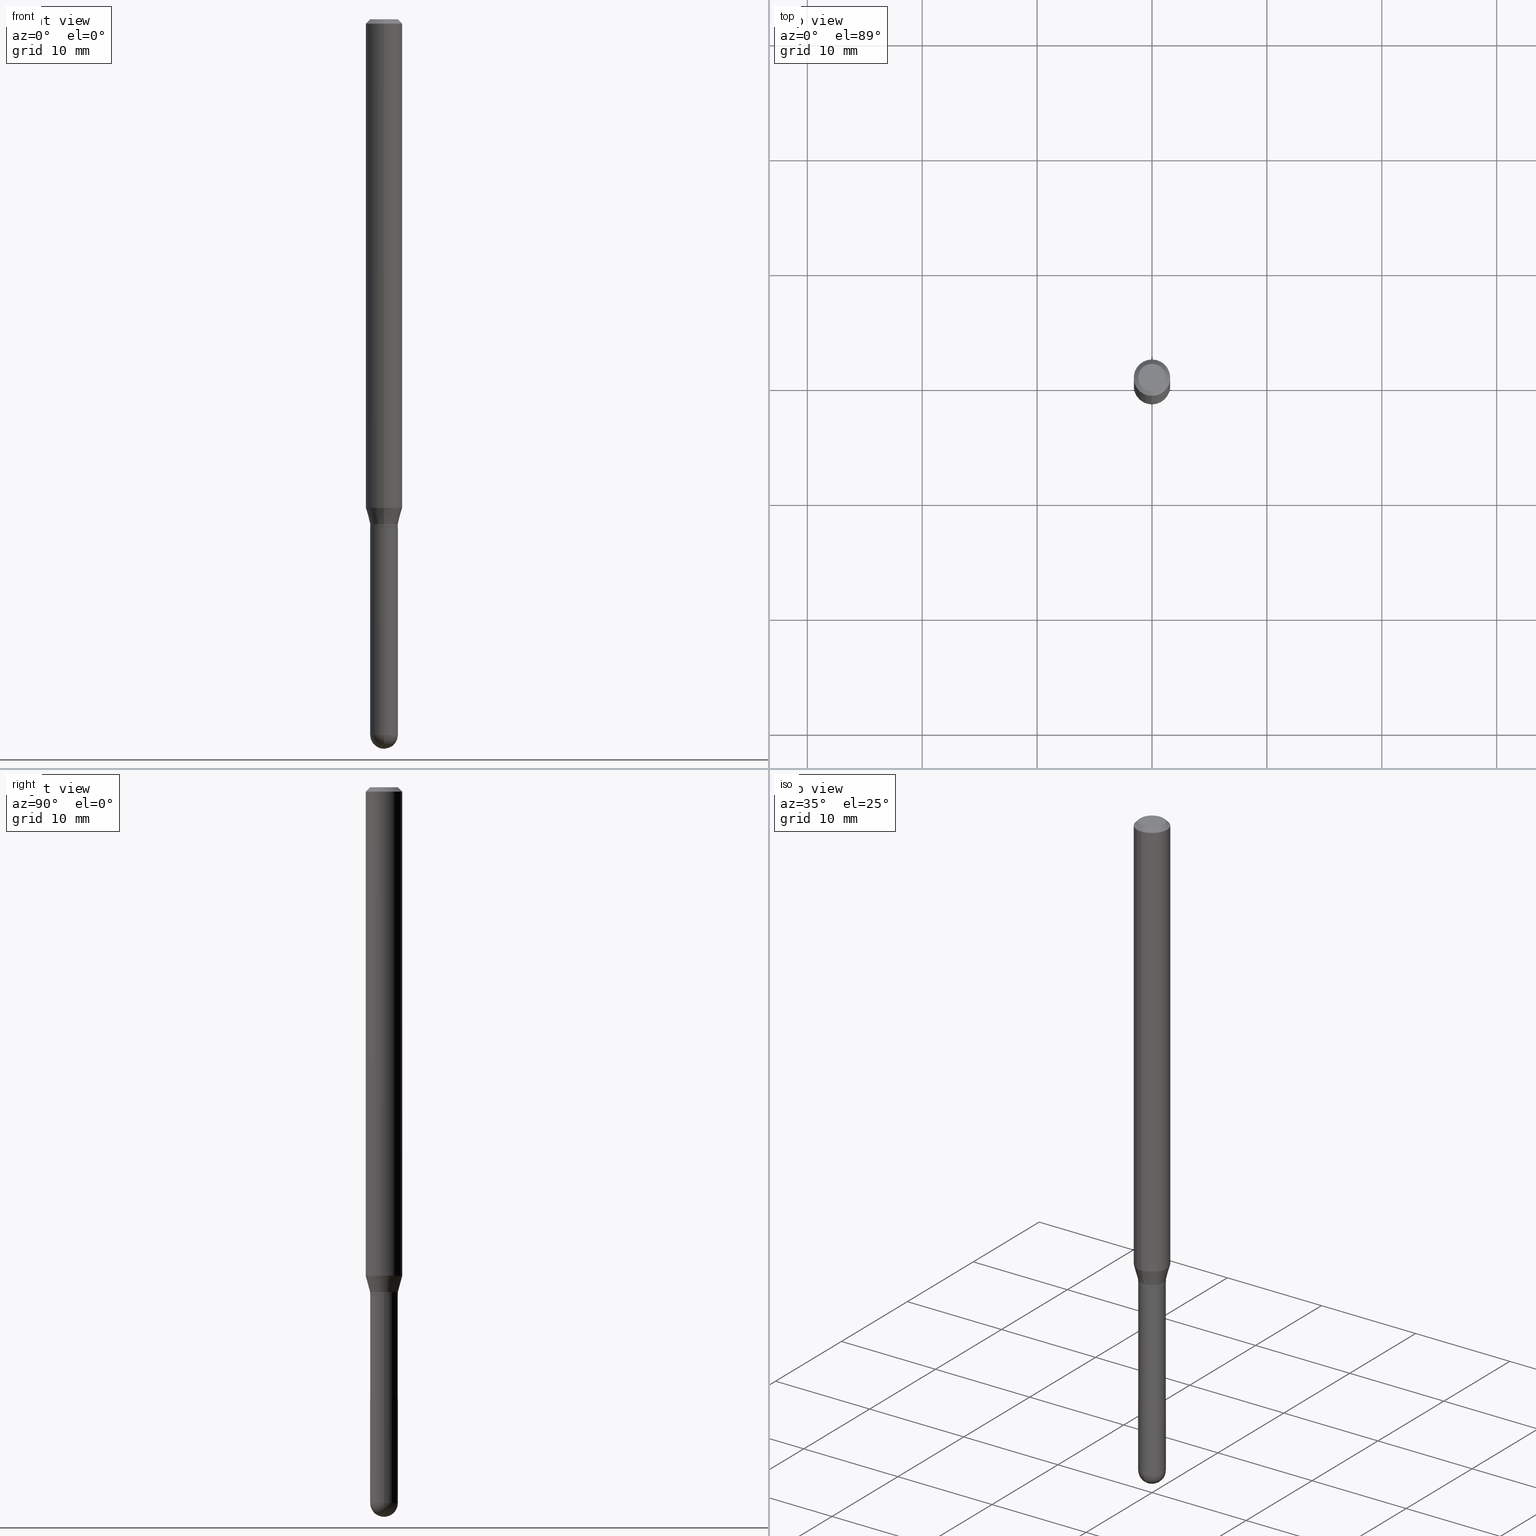
[diagram: canonical four-view strip — front | top / right | iso, engineering-drawing reading convention]
A machine part, canonical four-view strip (front | top / right | iso — engineering-drawing reading convention). The complete STEP part file that produces these views, byte-faithful:
ISO-10303-21;
HEADER;
FILE_DESCRIPTION (( 'STEP AP203' ),
    '1' );
FILE_NAME ('01001.STEP',
    '2024-03-07T19:38:45',
    ( '' ),
    ( '' ),
    'SwSTEP 2.0',
    'SolidWorks 2023',
    '' );
FILE_SCHEMA (( 'CONFIG_CONTROL_DESIGN' ));
ENDSEC;

DATA;
#1 = DIRECTION ( 'NONE',  ( -2.445469653378123056E-29, 3.491480125614569646E-15, 1.000000000000000000 ) ) ;
#2 = EDGE_LOOP ( 'NONE', ( #495, #195, #92, #414 ) ) ;
#3 = EDGE_CURVE ( 'NONE', #34, #158, #322, .T. ) ;
#4 = AXIS2_PLACEMENT_3D ( 'NONE', #206, #170, #361 ) ;
#5 = DIRECTION ( 'NONE',  ( -2.445469653378123056E-29, 3.491480125614569646E-15, 1.000000000000000000 ) ) ;
#6 = AXIS2_PLACEMENT_3D ( 'NONE', #153, #1, #386 ) ;
#7 = ORIENTED_EDGE ( 'NONE', *, *, #175, .T. ) ;
#8 = AXIS2_PLACEMENT_3D ( 'NONE', #26, #110, #420 ) ;
#9 = ADVANCED_FACE ( 'NONE', ( #166 ), #319, .F. ) ;
#10 = CARTESIAN_POINT ( 'NONE',  ( 3.668204480067187193E-31, -5.237220188421857822E-17, -0.01500000000000000812 ) ) ;
#11 = EDGE_LOOP ( 'NONE', ( #88, #292, #240, #467 ) ) ;
#12 = FACE_OUTER_BOUND ( 'NONE', #255, .T. ) ;
#13 = DIRECTION ( 'NONE',  ( -6.982962677686265922E-15, -1.000000000000000000, 3.491480125614569646E-15 ) ) ;
#14 = PERSON_AND_ORGANIZATION ( #139, #115 ) ;
#15 = CIRCLE ( 'NONE', #160, 0.04749999999999964667 ) ;
#16 = CARTESIAN_POINT ( 'NONE',  ( 3.375077994860883172E-16, 0.04749999999999367922, -1.739500000000000712 ) ) ;
#17 = COORDINATED_UNIVERSAL_TIME_OFFSET ( 5, 0, .BEHIND. ) ;
#18 = ORIENTED_EDGE ( 'NONE', *, *, #246, .T. ) ;
#19 = CARTESIAN_POINT ( 'NONE',  ( 0.000000000000000000, 0.000000000000000000, 0.000000000000000000 ) ) ;
#20 = EDGE_CURVE ( 'NONE', #158, #197, #403, .T. ) ;
#21 = CARTESIAN_POINT ( 'NONE',  ( -3.375077994859875895E-16, -0.04750000000000855621, -2.452499999999999680 ) ) ;
#22 = COORDINATED_UNIVERSAL_TIME_OFFSET ( 5, 0, .BEHIND. ) ;
#23 = CARTESIAN_POINT ( 'NONE',  ( -0.04750000000000000749, 3.375077994860476415E-16, -2.336494167871080260E-30 ) ) ;
#24 = EDGE_CURVE ( 'NONE', #131, #220, #326, .T. ) ;
#25 = DIRECTION ( 'NONE',  ( -2.445468806185136877E-29, 3.491481338843145188E-15, 1.000000000000000000 ) ) ;
#26 = CARTESIAN_POINT ( 'NONE',  ( 4.255117196877934184E-29, -6.075175418569351326E-15, -1.739999999999999991 ) ) ;
#27 = ORIENTED_EDGE ( 'NONE', *, *, #312, .F. ) ;
#28 = DIRECTION ( 'NONE',  ( -4.937700262164674260E-15, -0.7071067811865632269, 0.7071067811865319186 ) ) ;
#29 = EDGE_CURVE ( 'NONE', #461, #332, #443, .T. ) ;
#30 = DIRECTION ( 'NONE',  ( 1.000000000000000000, -6.982962677686265922E-15, 4.883557194083112340E-29 ) ) ;
#31 = ORIENTED_EDGE ( 'NONE', *, *, #435, .T. ) ;
#32 = DIRECTION ( 'NONE',  ( -6.982962677686265922E-15, -1.000000000000000000, 4.370956789862821150E-15 ) ) ;
#33 = CARTESIAN_POINT ( 'NONE',  ( 6.111640995526040935E-29, -8.731611883255839934E-15, -2.500000000000000000 ) ) ;
#34 = VERTEX_POINT ( 'NONE', #16 ) ;
#35 = FACE_OUTER_BOUND ( 'NONE', #2, .T. ) ;
#36 = EDGE_CURVE ( 'NONE', #388, #39, #363, .T. ) ;
#37 = ORIENTED_EDGE ( 'NONE', *, *, #375, .F. ) ;
#38 = DIRECTION ( 'NONE',  ( -2.445468806185136597E-29, 3.491481338843145583E-15, 1.000000000000000000 ) ) ;
#39 = VERTEX_POINT ( 'NONE', #369 ) ;
#40 = DIRECTION ( 'NONE',  ( -2.445469653378123056E-29, 3.491480125614569646E-15, 1.000000000000000000 ) ) ;
#41 = VERTEX_POINT ( 'NONE', #410 ) ;
#42 = AXIS2_PLACEMENT_3D ( 'NONE', #302, #377, #496 ) ;
#43 = ADVANCED_FACE ( 'NONE', ( #96 ), #46, .T. ) ;
#44 = EDGE_LOOP ( 'NONE', ( #279, #512 ) ) ;
#45 = DATE_AND_TIME ( #281, #471 ) ;
#46 = CYLINDRICAL_SURFACE ( 'NONE', #161, 0.04749999999999964667 ) ;
#47 = MECHANICAL_CONTEXT ( 'NONE', #70, 'mechanical' ) ;
#48 = DIRECTION ( 'NONE',  ( -2.445468806185136597E-29, 3.491481338843145583E-15, 1.000000000000000000 ) ) ;
#49 = SECURITY_CLASSIFICATION ( '', '', #257 ) ;
#50 = VERTEX_POINT ( 'NONE', #21 ) ;
#51 = AXIS2_PLACEMENT_3D ( 'NONE', #219, #149, #419 ) ;
#52 = CARTESIAN_POINT ( 'NONE',  ( 2.166778360945367895E-46, -3.093583096973605870E-32, -8.860377220188453536E-18 ) ) ;
#53 = EDGE_CURVE ( 'NONE', #233, #258, #380, .T. ) ;
#54 = APPROVAL_STATUS ( 'not_yet_approved' ) ;
#55 = EDGE_LOOP ( 'NONE', ( #316, #412 ) ) ;
#56 = UNCERTAINTY_MEASURE_WITH_UNIT (LENGTH_MEASURE( 1.000000000000000082E-05 ), #317, 'distance_accuracy_value', 'NONE');
#57 = CARTESIAN_POINT ( 'NONE',  ( 4.255115722762138620E-29, -6.075177529587074600E-15, -1.740000000000000213 ) ) ;
#58 = VERTEX_POINT ( 'NONE', #138 ) ;
#59 = DIRECTION ( 'NONE',  ( -6.982962677686266711E-15, -1.000000000000000000, 3.491480125614570041E-15 ) ) ;
#60 = PERSON_AND_ORGANIZATION ( #139, #115 ) ;
#61 = AXIS2_PLACEMENT_3D ( 'NONE', #429, #40, #470 ) ;
#62 = ADVANCED_FACE ( 'NONE', ( #12 ), #336, .T. ) ;
#63 = FACE_OUTER_BOUND ( 'NONE', #289, .T. ) ;
#64 = CALENDAR_DATE ( 2024, 7, 3 ) ;
#65 = DIRECTION ( 'NONE',  ( 1.000000000000000000, -6.982962677686266711E-15, 4.876176775795934672E-29 ) ) ;
#66 = CYLINDRICAL_SURFACE ( 'NONE', #268, 0.04749999999999964667 ) ;
#67 = VECTOR ( 'NONE', #303, 39.37007874015748143 ) ;
#68 = AXIS2_PLACEMENT_3D ( 'NONE', #236, #5, #32 ) ;
#69 = CARTESIAN_POINT ( 'NONE',  ( -3.281992458512119547E-16, -0.04700000000000607164, -1.739999999999999769 ) ) ;
#70 = APPLICATION_CONTEXT ( 'configuration controlled 3d designs of mechanical parts and assemblies' ) ;
#71 = CARTESIAN_POINT ( 'NONE',  ( 4.253894462051246233E-29, -6.073429678506545715E-15, -1.739500000000000490 ) ) ;
#72 = CARTESIAN_POINT ( 'NONE',  ( 4.364351673553919652E-16, 0.06249999999999995143, -0.01500000000000022669 ) ) ;
#73 = ORIENTED_EDGE ( 'NONE', *, *, #150, .F. ) ;
#74 = VECTOR ( 'NONE', #193, 39.37007874015748143 ) ;
#75 = EDGE_LOOP ( 'NONE', ( #478, #398, #474, #401 ) ) ;
#76 = CC_DESIGN_PERSON_AND_ORGANIZATION_ASSIGNMENT ( #84, #125, ( #341 ) ) ;
#77 = EDGE_LOOP ( 'NONE', ( #469, #510, #7, #442 ) ) ;
#78 = DIRECTION ( 'NONE',  ( 2.445469653378123056E-29, -3.491480125614569646E-15, -1.000000000000000000 ) ) ;
#79 = ORIENTED_EDGE ( 'NONE', *, *, #53, .T. ) ;
#80 = EDGE_CURVE ( 'NONE', #332, #131, #344, .T. ) ;
#81 = LENGTH_MEASURE_WITH_UNIT ( LENGTH_MEASURE( 0.02539999999999999897 ), #406 );
#82 = ORIENTED_EDGE ( 'NONE', *, *, #20, .F. ) ;
#83 = DIRECTION ( 'NONE',  ( 1.000000000000000000, -6.982962677686280910E-15, 0.000000000000000000 ) ) ;
#84 = PERSON_AND_ORGANIZATION ( #139, #115 ) ;
#85 = ORIENTED_EDGE ( 'NONE', *, *, #184, .F. ) ;
#86 = LINE ( 'NONE', #321, #109 ) ;
#87 = APPROVAL_STATUS ( 'not_yet_approved' ) ;
#88 = ORIENTED_EDGE ( 'NONE', *, *, #189, .F. ) ;
#89 = EDGE_CURVE ( 'NONE', #118, #220, #198, .T. ) ;
#90 = CONICAL_SURFACE ( 'NONE', #378, 0.06250000000000000000, 0.7853981633974483900 ) ;
#91 = CARTESIAN_POINT ( 'NONE',  ( -4.364351673553505007E-16, -0.06250000000000581479, -1.674019237886465561 ) ) ;
#92 = ORIENTED_EDGE ( 'NONE', *, *, #24, .T. ) ;
#93 = CLOSED_SHELL ( 'NONE', ( #43, #62, #355, #508, #404, #464, #415, #239, #284, #119, #230, #222 ) ) ;
#94 = CIRCLE ( 'NONE', #364, 0.04750000000000000749 ) ;
#95 = DIRECTION ( 'NONE',  ( -2.445469653378123056E-29, 3.491480125614569646E-15, 1.000000000000000000 ) ) ;
#96 = FACE_OUTER_BOUND ( 'NONE', #261, .T. ) ;
#97 = DIRECTION ( 'NONE',  ( -1.000000000000000000, 6.982962677686265922E-15, -4.876176775795935793E-29 ) ) ;
#98 = ORIENTED_EDGE ( 'NONE', *, *, #371, .F. ) ;
#99 = EDGE_CURVE ( 'NONE', #461, #197, #446, .T. ) ;
#100 = CARTESIAN_POINT ( 'NONE',  ( 4.440892098500625669E-16, 0.06250000000000000000, -2.182175078509106029E-16 ) ) ;
#101 = CC_DESIGN_APPROVAL ( #306, ( #341 ) ) ;
#102 = AXIS2_PLACEMENT_3D ( 'NONE', #311, #114, #430 ) ;
#103 = AXIS2_PLACEMENT_3D ( 'NONE', #271, #426, #462 ) ;
#104 = DIRECTION ( 'NONE',  ( -2.445468806185136597E-29, 3.491481338843145583E-15, 1.000000000000000000 ) ) ;
#105 = DIRECTION ( 'NONE',  ( -6.982962677686265133E-15, -1.000000000000000000, 3.491480125614569646E-15 ) ) ;
#106 = LINE ( 'NONE', #23, #171 ) ;
#107 = AXIS2_PLACEMENT_3D ( 'NONE', #224, #151, #181 ) ;
#108 = CC_DESIGN_APPROVAL ( #409, ( #49 ) ) ;
#109 = VECTOR ( 'NONE', #448, 39.37007874015748143 ) ;
#110 = DIRECTION ( 'NONE',  ( -2.445469653378123056E-29, 3.491480125614569646E-15, 1.000000000000000000 ) ) ;
#111 = CARTESIAN_POINT ( 'NONE',  ( 4.230662500344153301E-29, -6.040260617313205180E-15, -1.730000000000000204 ) ) ;
#112 = EDGE_LOOP ( 'NONE', ( #272, #452 ) ) ;
#113 = CARTESIAN_POINT ( 'NONE',  ( 0.04750000000000000749, -3.316907271900977082E-16, 2.316183968503069432E-30 ) ) ;
#114 = DIRECTION ( 'NONE',  ( -2.445469653378123056E-29, 3.491480125614569646E-15, 1.000000000000000000 ) ) ;
#115 = ORGANIZATION ( 'UNSPECIFIED', 'UNSPECIFIED', '' ) ;
#116 = DIRECTION ( 'NONE',  ( 1.000000000000000000, -6.982962677686280910E-15, 0.000000000000000000 ) ) ;
#117 = CIRCLE ( 'NONE', #432, 0.06250000000000000000 ) ;
#118 = VERTEX_POINT ( 'NONE', #296 ) ;
#119 = ADVANCED_FACE ( 'NONE', ( #213 ), #416, .F. ) ;
#120 = ORIENTED_EDGE ( 'NONE', *, *, #366, .T. ) ;
#121 = COORDINATED_UNIVERSAL_TIME_OFFSET ( 5, 0, .BEHIND. ) ;
#122 = DIRECTION ( 'NONE',  ( -2.445469653378123056E-29, 3.491480125614569646E-15, 1.000000000000000000 ) ) ;
#123 = ORIENTED_EDGE ( 'NONE', *, *, #137, .T. ) ;
#124 = CARTESIAN_POINT ( 'NONE',  ( -3.316907271900519050E-16, -0.04750000000000561412, -1.739500000000000046 ) ) ;
#125 = PERSON_AND_ORGANIZATION_ROLE ( 'creator' ) ;
#126 = DIRECTION ( 'NONE',  ( -2.445469653378123056E-29, 3.491480125614569646E-15, 1.000000000000000000 ) ) ;
#127 = DATE_AND_TIME ( #484, #286 ) ;
#128 = ORIENTED_EDGE ( 'NONE', *, *, #184, .T. ) ;
#129 = EDGE_CURVE ( 'NONE', #58, #440, #227, .T. ) ;
#130 = DIRECTION ( 'NONE',  ( 1.000000000000000000, -6.982962677686261977E-15, 0.000000000000000000 ) ) ;
#131 = VERTEX_POINT ( 'NONE', #91 ) ;
#132 = DIRECTION ( 'NONE',  ( -2.445469653378123056E-29, 3.491480125614569646E-15, 1.000000000000000000 ) ) ;
#133 = CIRCLE ( 'NONE', #423, 0.04750000000000000749 ) ;
#134 = APPROVAL_DATE_TIME ( #501, #409 ) ;
#135 = ORIENTED_EDGE ( 'NONE', *, *, #371, .T. ) ;
#136 = DIRECTION ( 'NONE',  ( -6.982962677686265922E-15, -1.000000000000000000, 3.491480125614569646E-15 ) ) ;
#137 = EDGE_CURVE ( 'NONE', #39, #50, #94, .T. ) ;
#138 = CARTESIAN_POINT ( 'NONE',  ( -0.04749999999999999362, -6.981509957063897703E-15, -1.740000000000000213 ) ) ;
#139 = PERSON ( 'UNSPECIFIED', 'UNSPECIFIED', 'UNSPECIFIED', ('UNSPECIFIED'), ('UNSPECIFIED'), ('UNSPECIFIED') ) ;
#140 = FACE_OUTER_BOUND ( 'NONE', #55, .T. ) ;
#141 = CC_DESIGN_PERSON_AND_ORGANIZATION_ASSIGNMENT ( #494, #411, ( #49 ) ) ;
#142 = DATE_TIME_ROLE ( 'classification_date' ) ;
#143 = DIMENSIONAL_EXPONENTS ( 1.000000000000000000, 0.000000000000000000, 0.000000000000000000, 0.000000000000000000, 0.000000000000000000, 0.000000000000000000, 0.000000000000000000 ) ;
#144 = LINE ( 'NONE', #69, #399 ) ;
#145 = CC_DESIGN_APPROVAL ( #505, ( #455 ) ) ;
#146 = AXIS2_PLACEMENT_3D ( 'NONE', #351, #365, #97 ) ;
#147 = CIRCLE ( 'NONE', #162, 0.04749999999999999362 ) ;
#148 = DIRECTION ( 'NONE',  ( -6.982962677686265133E-15, -1.000000000000000000, 5.751258934030070759E-15 ) ) ;
#149 = DIRECTION ( 'NONE',  ( -2.445469653378123056E-29, 3.491480125614569646E-15, 1.000000000000000000 ) ) ;
#150 = EDGE_CURVE ( 'NONE', #214, #41, #200, .T. ) ;
#151 = DIRECTION ( 'NONE',  ( 2.445469653378122775E-29, -3.491480125614569646E-15, -1.000000000000000000 ) ) ;
#152 = DIRECTION ( 'NONE',  ( -1.000000000000000000, 7.105427357601001070E-15, -4.926315508542082329E-29 ) ) ;
#153 = CARTESIAN_POINT ( 'NONE',  ( 4.230662500344153301E-29, -6.040260617313205180E-15, -1.730000000000000204 ) ) ;
#154 = EDGE_CURVE ( 'NONE', #34, #461, #86, .T. ) ;
#155 = ORIENTED_EDGE ( 'NONE', *, *, #435, .F. ) ;
#156 = DIRECTION ( 'NONE',  ( -2.445469653378123056E-29, 3.491480125614569646E-15, 1.000000000000000000 ) ) ;
#157 = EDGE_LOOP ( 'NONE', ( #299, #433, #163, #325 ) ) ;
#158 = VERTEX_POINT ( 'NONE', #124 ) ;
#159 = ADVANCED_BREP_SHAPE_REPRESENTATION ( '01001', ( #499, #320, #362 ), #234 ) ;
#160 = AXIS2_PLACEMENT_3D ( 'NONE', #71, #156, #466 ) ;
#161 = AXIS2_PLACEMENT_3D ( 'NONE', #19, #487, #413 ) ;
#162 = AXIS2_PLACEMENT_3D ( 'NONE', #387, #194, #397 ) ;
#163 = ORIENTED_EDGE ( 'NONE', *, *, #137, .F. ) ;
#164 = APPLICATION_PROTOCOL_DEFINITION ( 'international standard', 'config_control_design', 1994, #249 ) ;
#165 = CARTESIAN_POINT ( 'NONE',  ( 5.997512247169047773E-29, -8.562857983512815004E-15, -2.452500000000000124 ) ) ;
#166 = FACE_OUTER_BOUND ( 'NONE', #112, .T. ) ;
#167 = CARTESIAN_POINT ( 'NONE',  ( 0.000000000000000000, 0.000000000000000000, 0.000000000000000000 ) ) ;
#168 = DIRECTION ( 'NONE',  ( -2.445468806185136597E-29, 3.491481338843145583E-15, 1.000000000000000000 ) ) ;
#169 = VECTOR ( 'NONE', #216, 39.37007874015748143 ) ;
#170 = DIRECTION ( 'NONE',  ( -2.445469653378123056E-29, 3.491480125614569646E-15, 1.000000000000000000 ) ) ;
#171 = VECTOR ( 'NONE', #25, 39.37007874015748143 ) ;
#172 = APPROVAL_STATUS ( 'not_yet_approved' ) ;
#173 = CARTESIAN_POINT ( 'NONE',  ( 4.255117196877934184E-29, -6.075175418569351326E-15, -1.739999999999999991 ) ) ;
#174 = CARTESIAN_POINT ( 'NONE',  ( 4.255117196877934184E-29, -6.075175418569351326E-15, -1.739999999999999991 ) ) ;
#175 = EDGE_CURVE ( 'NONE', #197, #131, #287, .T. ) ;
#176 = AXIS2_PLACEMENT_3D ( 'NONE', #196, #122, #282 ) ;
#177 = DIRECTION ( 'NONE',  ( -6.982962677686265133E-15, -1.000000000000000000, 5.751258934030070759E-15 ) ) ;
#178 = PERSON_AND_ORGANIZATION_ROLE ( 'creator' ) ;
#179 = ORIENTED_EDGE ( 'NONE', *, *, #192, .F. ) ;
#180 = AXIS2_PLACEMENT_3D ( 'NONE', #182, #104, #65 ) ;
#181 = DIRECTION ( 'NONE',  ( 6.982962677686265922E-15, 1.000000000000000000, -3.491480125614569646E-15 ) ) ;
#182 = CARTESIAN_POINT ( 'NONE',  ( 0.000000000000000000, 0.000000000000000000, 0.000000000000000000 ) ) ;
#183 = CARTESIAN_POINT ( 'NONE',  ( -3.773273898774340269E-16, -0.04749999999999999362, 1.569849287465035850E-16 ) ) ;
#184 = EDGE_CURVE ( 'NONE', #214, #220, #438, .T. ) ;
#185 = APPROVAL_PERSON_ORGANIZATION ( #373, #409, #444 ) ;
#186 = AXIS2_PLACEMENT_3D ( 'NONE', #480, #450, #177 ) ;
#187 = DIRECTION ( 'NONE',  ( 6.982962677686265922E-15, 1.000000000000000000, -3.483106191921935554E-15 ) ) ;
#188 = FACE_OUTER_BOUND ( 'NONE', #203, .T. ) ;
#189 = EDGE_CURVE ( 'NONE', #258, #34, #500, .T. ) ;
#190 = CARTESIAN_POINT ( 'NONE',  ( 3.907985046680954347E-16, 0.04749999999999360289, -1.730000000000000426 ) ) ;
#191 = CONICAL_SURFACE ( 'NONE', #6, 0.04749999999999964667, 0.2617993877991505181 ) ;
#192 = EDGE_CURVE ( 'NONE', #370, #50, #228, .T. ) ;
#193 = DIRECTION ( 'NONE',  ( 4.937700262164548042E-15, 0.7071067811865451302, -0.7071067811865499042 ) ) ;
#194 = DIRECTION ( 'NONE',  ( -2.445469653378123056E-29, 3.491480125614569646E-15, 1.000000000000000000 ) ) ;
#195 = ORIENTED_EDGE ( 'NONE', *, *, #80, .T. ) ;
#196 = CARTESIAN_POINT ( 'NONE',  ( 4.255117196877934184E-29, -6.075175418569351326E-15, -1.739999999999999991 ) ) ;
#197 = VERTEX_POINT ( 'NONE', #422 ) ;
#198 = CIRCLE ( 'NONE', #503, 0.06250000000000000000 ) ;
#199 = AXIS2_PLACEMENT_3D ( 'NONE', #308, #318, #477 ) ;
#200 = CIRCLE ( 'NONE', #244, 0.04749999999999999362 ) ;
#201 = EDGE_LOOP ( 'NONE', ( #428, #337, #37, #280 ) ) ;
#202 = APPLICATION_PROTOCOL_DEFINITION ( 'international standard', 'config_control_design', 1994, #70 ) ;
#203 = EDGE_LOOP ( 'NONE', ( #449, #123, #392, #485, #243 ) ) ;
#204 = APPROVAL_DATE_TIME ( #45, #306 ) ;
#205 = EDGE_CURVE ( 'NONE', #370, #388, #390, .T. ) ;
#206 = CARTESIAN_POINT ( 'NONE',  ( 4.255117196877934184E-29, -6.075175418569351326E-15, -1.739999999999999991 ) ) ;
#207 = DATE_AND_TIME ( #439, #334 ) ;
#208 = CONICAL_SURFACE ( 'NONE', #502, 0.04749999999999964667, 0.2617993877991505181 ) ;
#209 = DIRECTION ( 'NONE',  ( -1.000000000000000000, 6.982962677686265922E-15, -4.883557194083112340E-29 ) ) ;
#210 = DIRECTION ( 'NONE',  ( -1.807323732225331717E-15, -0.2588190451025184080, 0.9659258262890689783 ) ) ;
#211 = AXIS2_PLACEMENT_3D ( 'NONE', #173, #441, #291 ) ;
#212 = CYLINDRICAL_SURFACE ( 'NONE', #295, 0.06250000000000000000 ) ;
#213 = FACE_OUTER_BOUND ( 'NONE', #44, .T. ) ;
#214 = VERTEX_POINT ( 'NONE', #183 ) ;
#215 = EDGE_CURVE ( 'NONE', #332, #118, #262, .T. ) ;
#216 = DIRECTION ( 'NONE',  ( -2.445469653378123056E-29, 3.491480125614569646E-15, 1.000000000000000000 ) ) ;
#217 = ORIENTED_EDGE ( 'NONE', *, *, #89, .T. ) ;
#218 = PRODUCT_RELATED_PRODUCT_CATEGORY ( 'detail', '', ( #393 ) ) ;
#219 = CARTESIAN_POINT ( 'NONE',  ( 4.230662500344153301E-29, -6.040260617313205180E-15, -1.730000000000000204 ) ) ;
#220 = VERTEX_POINT ( 'NONE', #346 ) ;
#221 = DIRECTION ( 'NONE',  ( -1.000000000000000000, 6.982962677686265922E-15, -4.883557194083112340E-29 ) ) ;
#222 = ADVANCED_FACE ( 'NONE', ( #463 ), #66, .T. ) ;
#223 = SPHERICAL_SURFACE ( 'NONE', #275, 0.04749999999999998668 ) ;
#224 = CARTESIAN_POINT ( 'NONE',  ( 3.316907271900976096E-16, 0.04749999999999999362, -1.702754945767862815E-16 ) ) ;
#225 = DIRECTION ( 'NONE',  ( -2.445469653378123056E-29, 3.491480125614569646E-15, 1.000000000000000000 ) ) ;
#226 = CC_DESIGN_DATE_AND_TIME_ASSIGNMENT ( #207, #248, ( #341 ) ) ;
#227 = CIRCLE ( 'NONE', #425, 0.04749999999999999362 ) ;
#228 = CIRCLE ( 'NONE', #473, 0.04749999999999998668 ) ;
#229 = DIRECTION ( 'NONE',  ( -7.105427357601001070E-15, -1.000000000000000000, 0.000000000000000000 ) ) ;
#230 = ADVANCED_FACE ( 'NONE', ( #453 ), #491, .T. ) ;
#231 = CC_DESIGN_PERSON_AND_ORGANIZATION_ASSIGNMENT ( #60, #178, ( #455 ) ) ;
#232 = CARTESIAN_POINT ( 'NONE',  ( 3.668204480067187193E-31, -5.237220188421857822E-17, -0.01500000000000000812 ) ) ;
#233 = VERTEX_POINT ( 'NONE', #267 ) ;
#234 =( GEOMETRIC_REPRESENTATION_CONTEXT ( 3 ) GLOBAL_UNCERTAINTY_ASSIGNED_CONTEXT ( ( #56 ) ) GLOBAL_UNIT_ASSIGNED_CONTEXT ( ( #317, #288, #475 ) ) REPRESENTATION_CONTEXT ( 'NONE', 'WORKASPACE' ) );
#235 = VECTOR ( 'NONE', #259, 39.37007874015748854 ) ;
#236 = CARTESIAN_POINT ( 'NONE',  ( 4.093763245422525431E-29, -5.844804898977045154E-15, -1.674019237886465783 ) ) ;
#237 = ORIENTED_EDGE ( 'NONE', *, *, #189, .T. ) ;
#238 = CYLINDRICAL_SURFACE ( 'NONE', #199, 0.04750000000000000749 ) ;
#239 = ADVANCED_FACE ( 'NONE', ( #63 ), #382, .T. ) ;
#240 = ORIENTED_EDGE ( 'NONE', *, *, #304, .T. ) ;
#241 = DIRECTION ( 'NONE',  ( -2.445469653378123056E-29, 3.491480125614569646E-15, 1.000000000000000000 ) ) ;
#242 = ORIENTED_EDGE ( 'NONE', *, *, #246, .F. ) ;
#243 = ORIENTED_EDGE ( 'NONE', *, *, #129, .F. ) ;
#244 = AXIS2_PLACEMENT_3D ( 'NONE', #52, #132, #59 ) ;
#245 = ORIENTED_EDGE ( 'NONE', *, *, #421, .F. ) ;
#246 = EDGE_CURVE ( 'NONE', #197, #461, #333, .T. ) ;
#247 = CARTESIAN_POINT ( 'NONE',  ( -3.316907271900951444E-16, -0.04749999999999964667, 1.658453059666908167E-16 ) ) ;
#248 = DATE_TIME_ROLE ( 'creation_date' ) ;
#249 = APPLICATION_CONTEXT ( 'configuration controlled 3d designs of mechanical parts and assemblies' ) ;
#250 = CARTESIAN_POINT ( 'NONE',  ( -3.316907271900528910E-16, -0.04750000000000569045, -1.729999999999999760 ) ) ;
#251 = COORDINATED_UNIVERSAL_TIME_OFFSET ( 5, 0, .BEHIND. ) ;
#252 = FACE_OUTER_BOUND ( 'NONE', #201, .T. ) ;
#253 = APPROVAL_PERSON_ORGANIZATION ( #14, #505, #324 ) ;
#254 = CARTESIAN_POINT ( 'NONE',  ( 5.997512247169047773E-29, -8.562857983512815004E-15, -2.452500000000000124 ) ) ;
#255 = EDGE_LOOP ( 'NONE', ( #79, #237, #374, #352 ) ) ;
#256 = CARTESIAN_POINT ( 'NONE',  ( 3.375077994860872818E-16, 0.04749999999999360289, -1.730000000000000426 ) ) ;
#257 = SECURITY_CLASSIFICATION_LEVEL ( 'unclassified' ) ;
#258 = VERTEX_POINT ( 'NONE', #266 ) ;
#259 = DIRECTION ( 'NONE',  ( 1.839019923739601893E-15, 0.2588190451025252359, 0.9659258262890670910 ) ) ;
#260 = PERSON_AND_ORGANIZATION_ROLE ( 'design_supplier' ) ;
#261 = EDGE_LOOP ( 'NONE', ( #120, #507, #242, #82 ) ) ;
#262 = LINE ( 'NONE', #100, #270 ) ;
#263 = COORDINATED_UNIVERSAL_TIME_OFFSET ( 5, 0, .BEHIND. ) ;
#264 = CLOSED_SHELL ( 'NONE', ( #447, #481, #9, #294, #349 ) ) ;
#265 = DIRECTION ( 'NONE',  ( -2.445469653378123056E-29, 3.491480125614569646E-15, 1.000000000000000000 ) ) ;
#266 = CARTESIAN_POINT ( 'NONE',  ( 3.357314426466885089E-16, 0.04699999999999391470, -1.740000000000000213 ) ) ;
#267 = CARTESIAN_POINT ( 'NONE',  ( -3.281992458512119547E-16, -0.04700000000000607164, -1.739999999999999769 ) ) ;
#268 = AXIS2_PLACEMENT_3D ( 'NONE', #457, #265, #105 ) ;
#269 = APPROVAL_PERSON_ORGANIZATION ( #437, #306, #402 ) ;
#270 = VECTOR ( 'NONE', #225, 39.37007874015748143 ) ;
#271 = CARTESIAN_POINT ( 'NONE',  ( 5.997512247169047773E-29, -8.562857983512815004E-15, -2.452500000000000124 ) ) ;
#272 = ORIENTED_EDGE ( 'NONE', *, *, #345, .T. ) ;
#273 = DIRECTION ( 'NONE',  ( -2.445468806185136877E-29, 3.491481338843145188E-15, 1.000000000000000000 ) ) ;
#274 = ORIENTED_EDGE ( 'NONE', *, *, #175, .F. ) ;
#275 = AXIS2_PLACEMENT_3D ( 'NONE', #367, #209, #486 ) ;
#276 = FACE_OUTER_BOUND ( 'NONE', #157, .T. ) ;
#277 = AXIS2_PLACEMENT_3D ( 'NONE', #174, #330, #13 ) ;
#278 = CARTESIAN_POINT ( 'NONE',  ( 0.04749999999999999362, -6.406868256777172111E-15, -1.740000000000000213 ) ) ;
#279 = ORIENTED_EDGE ( 'NONE', *, *, #53, .F. ) ;
#280 = ORIENTED_EDGE ( 'NONE', *, *, #24, .F. ) ;
#281 = CALENDAR_DATE ( 2024, 7, 3 ) ;
#282 = DIRECTION ( 'NONE',  ( -6.982962677686266711E-15, -1.000000000000000000, 5.812442539711199378E-15 ) ) ;
#283 = ORIENTED_EDGE ( 'NONE', *, *, #328, .T. ) ;
#284 = ADVANCED_FACE ( 'NONE', ( #140 ), #504, .F. ) ;
#285 = PERSON_AND_ORGANIZATION ( #139, #115 ) ;
#286 = LOCAL_TIME ( 14, 38, 45.00000000000000000, #251 ) ;
#287 = LINE ( 'NONE', #250, #492 ) ;
#288 =( NAMED_UNIT ( * ) PLANE_ANGLE_UNIT ( ) SI_UNIT ( $, .RADIAN. ) );
#289 = EDGE_LOOP ( 'NONE', ( #85, #381, #135, #217 ) ) ;
#290 = CARTESIAN_POINT ( 'NONE',  ( -4.364351673553916201E-16, -0.06250000000000000000, 2.182175078509106029E-16 ) ) ;
#291 = DIRECTION ( 'NONE',  ( -6.982962677686266711E-15, -1.000000000000000000, 5.812442539711199378E-15 ) ) ;
#292 = ORIENTED_EDGE ( 'NONE', *, *, #459, .T. ) ;
#293 = AXIS2_PLACEMENT_3D ( 'NONE', #343, #301, #187 ) ;
#294 = ADVANCED_FACE ( 'NONE', ( #424 ), #340, .T. ) ;
#295 = AXIS2_PLACEMENT_3D ( 'NONE', #329, #95, #136 ) ;
#296 = CARTESIAN_POINT ( 'NONE',  ( 4.440892098501038342E-16, 0.06249999999999995143, -0.01500000000000022669 ) ) ;
#297 = CIRCLE ( 'NONE', #103, 0.04750000000000000749 ) ;
#298 = SHAPE_DEFINITION_REPRESENTATION ( #479, #159 ) ;
#299 = ORIENTED_EDGE ( 'NONE', *, *, #205, .F. ) ;
#300 = DIRECTION ( 'NONE',  ( -6.982962677686265922E-15, -1.000000000000000000, 3.483106191921935554E-15 ) ) ;
#301 = DIRECTION ( 'NONE',  ( 2.445469653378123056E-29, -3.491480125614569646E-15, -1.000000000000000000 ) ) ;
#302 = CARTESIAN_POINT ( 'NONE',  ( 4.255115722762138620E-29, -6.075177529587074600E-15, -1.740000000000000213 ) ) ;
#303 = DIRECTION ( 'NONE',  ( 5.024295867788190974E-15, 0.7071067811865681119, 0.7071067811865270336 ) ) ;
#304 = EDGE_CURVE ( 'NONE', #233, #158, #144, .T. ) ;
#305 = DIRECTION ( 'NONE',  ( 6.982962677686265922E-15, 1.000000000000000000, -5.751258934030028949E-15 ) ) ;
#306 = APPROVAL ( #87, 'UNSPECIFIED' ) ;
#307 = CARTESIAN_POINT ( 'NONE',  ( 4.440892098501036369E-16, 0.06249999999999418521, -1.674019237886466227 ) ) ;
#308 = CARTESIAN_POINT ( 'NONE',  ( 0.000000000000000000, 0.000000000000000000, 0.000000000000000000 ) ) ;
#309 = ORIENTED_EDGE ( 'NONE', *, *, #345, .F. ) ;
#310 = CARTESIAN_POINT ( 'NONE',  ( 3.316907271901575630E-16, 0.04749999999999143102, -2.452500000000000568 ) ) ;
#311 = CARTESIAN_POINT ( 'NONE',  ( 4.253894462051246233E-29, -6.073429678506545715E-15, -1.739500000000000490 ) ) ;
#312 = EDGE_CURVE ( 'NONE', #50, #395, #297, .T. ) ;
#313 = CYLINDRICAL_SURFACE ( 'NONE', #61, 0.06250000000000000000 ) ;
#314 = VECTOR ( 'NONE', #376, 39.37007874015748143 ) ;
#315 = FACE_OUTER_BOUND ( 'NONE', #445, .T. ) ;
#316 = ORIENTED_EDGE ( 'NONE', *, *, #383, .T. ) ;
#317 =( CONVERSION_BASED_UNIT ( 'INCH', #81 ) LENGTH_UNIT ( ) NAMED_UNIT ( #143 ) );
#318 = DIRECTION ( 'NONE',  ( -2.445468806185136597E-29, 3.491481338843145583E-15, 1.000000000000000000 ) ) ;
#319 = PLANE ( 'NONE',  #146 ) ;
#320 = MANIFOLD_SOLID_BREP ( 'Body-Move/Copy2[2]', #93 ) ;
#321 = CARTESIAN_POINT ( 'NONE',  ( 3.375077994860450284E-16, 0.04749999999999964667, -1.658453059666908167E-16 ) ) ;
#322 = CIRCLE ( 'NONE', #102, 0.04749999999999964667 ) ;
#323 = CARTESIAN_POINT ( 'NONE',  ( 4.093763245422525431E-29, -5.844804898977045154E-15, -1.674019237886465783 ) ) ;
#324 = APPROVAL_ROLE ( '' ) ;
#325 = ORIENTED_EDGE ( 'NONE', *, *, #36, .F. ) ;
#326 = LINE ( 'NONE', #290, #169 ) ;
#327 = DIRECTION ( 'NONE',  ( 0.000000000000000000, 0.000000000000000000, 1.000000000000000000 ) ) ;
#328 = EDGE_CURVE ( 'NONE', #39, #58, #106, .T. ) ;
#329 = CARTESIAN_POINT ( 'NONE',  ( 0.000000000000000000, 0.000000000000000000, 0.000000000000000000 ) ) ;
#330 = DIRECTION ( 'NONE',  ( -2.445469653378122775E-29, 3.491480125614569646E-15, 1.000000000000000000 ) ) ;
#331 = CALENDAR_DATE ( 2024, 7, 3 ) ;
#332 = VERTEX_POINT ( 'NONE', #307 ) ;
#333 = CIRCLE ( 'NONE', #51, 0.04749999999999964667 ) ;
#334 = LOCAL_TIME ( 14, 38, 45.00000000000000000, #17 ) ;
#335 = DIRECTION ( 'NONE',  ( 1.000000000000000000, -6.982962677686280910E-15, 0.000000000000000000 ) ) ;
#336 = CONICAL_SURFACE ( 'NONE', #4, 0.04699999999999999317, 0.7853981633974739252 ) ;
#337 = ORIENTED_EDGE ( 'NONE', *, *, #215, .T. ) ;
#338 = CARTESIAN_POINT ( 'NONE',  ( 5.993450207295445537E-29, -8.568675055808764986E-15, -2.452500000000000124 ) ) ;
#339 = ORIENTED_EDGE ( 'NONE', *, *, #385, .F. ) ;
#340 = SPHERICAL_SURFACE ( 'NONE', #353, 0.04749999999999998668 ) ;
#341 = PRODUCT_DEFINITION ( 'UNKNOWN', '', #455, #396 ) ;
#342 = CIRCLE ( 'NONE', #176, 0.04699999999999999317 ) ;
#343 = CARTESIAN_POINT ( 'NONE',  ( 3.668204480067187193E-31, -5.237220188421857822E-17, -0.01500000000000000812 ) ) ;
#344 = CIRCLE ( 'NONE', #465, 0.06250000000000000000 ) ;
#345 = EDGE_CURVE ( 'NONE', #440, #58, #456, .T. ) ;
#346 = CARTESIAN_POINT ( 'NONE',  ( -4.364351673553912750E-16, -0.06250000000000005551, -0.01499999999999979128 ) ) ;
#347 = ORIENTED_EDGE ( 'NONE', *, *, #29, .T. ) ;
#348 = FACE_OUTER_BOUND ( 'NONE', #77, .T. ) ;
#349 = ADVANCED_FACE ( 'NONE', ( #188 ), #509, .T. ) ;
#350 = ORIENTED_EDGE ( 'NONE', *, *, #375, .T. ) ;
#351 = CARTESIAN_POINT ( 'NONE',  ( 3.316907271901401095E-16, 0.04749999999999392208, -1.740000000000000657 ) ) ;
#352 = ORIENTED_EDGE ( 'NONE', *, *, #304, .F. ) ;
#353 = AXIS2_PLACEMENT_3D ( 'NONE', #379, #221, #305 ) ;
#354 = VECTOR ( 'NONE', #273, 39.37007874015748143 ) ;
#355 = ADVANCED_FACE ( 'NONE', ( #434 ), #90, .T. ) ;
#356 = CIRCLE ( 'NONE', #68, 0.06250000000000000000 ) ;
#357 = LINE ( 'NONE', #72, #74 ) ;
#358 = EDGE_LOOP ( 'NONE', ( #18, #347, #339, #274 ) ) ;
#359 = PERSON_AND_ORGANIZATION_ROLE ( 'design_owner' ) ;
#360 = CARTESIAN_POINT ( 'NONE',  ( 5.997512247169047773E-29, -8.562857983512815004E-15, -2.452500000000000124 ) ) ;
#361 = DIRECTION ( 'NONE',  ( -6.982962677686266711E-15, -1.000000000000000000, 5.812442539711199378E-15 ) ) ;
#362 = AXIS2_PLACEMENT_3D ( 'NONE', #167, #327, #488 ) ;
#363 = CIRCLE ( 'NONE', #431, 0.04750000000000000749 ) ;
#364 = AXIS2_PLACEMENT_3D ( 'NONE', #254, #490, #83 ) ;
#365 = DIRECTION ( 'NONE',  ( 2.438088387897960049E-29, -3.491481338843145188E-15, -1.000000000000000000 ) ) ;
#366 = EDGE_CURVE ( 'NONE', #158, #34, #15, .T. ) ;
#367 = CARTESIAN_POINT ( 'NONE',  ( 5.993450207295445537E-29, -8.568675055808764986E-15, -2.452500000000000124 ) ) ;
#368 = DIRECTION ( 'NONE',  ( -2.445469653378123056E-29, 3.491480125614569646E-15, 1.000000000000000000 ) ) ;
#369 = CARTESIAN_POINT ( 'NONE',  ( -0.04750000000000000749, -6.981509957063897703E-15, -2.452500000000000124 ) ) ;
#370 = VERTEX_POINT ( 'NONE', #33 ) ;
#371 = EDGE_CURVE ( 'NONE', #41, #118, #357, .T. ) ;
#372 = CARTESIAN_POINT ( 'NONE',  ( -4.287811248607203282E-16, -0.06250000000000005551, -0.01499999999999979128 ) ) ;
#373 = PERSON_AND_ORGANIZATION ( #139, #115 ) ;
#374 = ORIENTED_EDGE ( 'NONE', *, *, #366, .F. ) ;
#375 = EDGE_CURVE ( 'NONE', #220, #118, #117, .T. ) ;
#376 = DIRECTION ( 'NONE',  ( -4.851104656540964275E-15, -0.7071067811865500152, -0.7071067811865450192 ) ) ;
#377 = DIRECTION ( 'NONE',  ( -2.445468806185136597E-29, 3.491481338843145583E-15, 1.000000000000000000 ) ) ;
#378 = AXIS2_PLACEMENT_3D ( 'NONE', #232, #78, #427 ) ;
#379 = CARTESIAN_POINT ( 'NONE',  ( 5.993450207295445537E-29, -8.568675055808764986E-15, -2.452500000000000124 ) ) ;
#380 = CIRCLE ( 'NONE', #211, 0.04699999999999999317 ) ;
#381 = ORIENTED_EDGE ( 'NONE', *, *, #383, .F. ) ;
#382 = CONICAL_SURFACE ( 'NONE', #293, 0.06250000000000000000, 0.7853981633974483900 ) ;
#383 = EDGE_CURVE ( 'NONE', #41, #214, #147, .T. ) ;
#384 = CARTESIAN_POINT ( 'NONE',  ( 5.993450207295445537E-29, -8.568675055808764986E-15, -2.452500000000000124 ) ) ;
#385 = EDGE_CURVE ( 'NONE', #131, #332, #356, .T. ) ;
#386 = DIRECTION ( 'NONE',  ( -6.982962677686265133E-15, -1.000000000000000000, 5.751258934030070759E-15 ) ) ;
#387 = CARTESIAN_POINT ( 'NONE',  ( 2.166778360945367895E-46, -3.093583096973605870E-32, -8.860377220188453536E-18 ) ) ;
#388 = VERTEX_POINT ( 'NONE', #310 ) ;
#389 = VECTOR ( 'NONE', #368, 39.37007874015748143 ) ;
#390 = CIRCLE ( 'NONE', #408, 0.04749999999999998668 ) ;
#391 = DIRECTION ( 'NONE',  ( -6.982962677686265922E-15, -1.000000000000000000, 3.483106191921935554E-15 ) ) ;
#392 = ORIENTED_EDGE ( 'NONE', *, *, #312, .T. ) ;
#393 = PRODUCT ( '01001', '01001', '', ( #47 ) ) ;
#394 = LINE ( 'NONE', #113, #354 ) ;
#395 = VERTEX_POINT ( 'NONE', #511 ) ;
#396 = DESIGN_CONTEXT ( 'detailed design', #249, 'design' ) ;
#397 = DIRECTION ( 'NONE',  ( -6.982962677686266711E-15, -1.000000000000000000, 3.491480125614570041E-15 ) ) ;
#398 = ORIENTED_EDGE ( 'NONE', *, *, #3, .T. ) ;
#399 = VECTOR ( 'NONE', #28, 39.37007874015748143 ) ;
#400 = CC_DESIGN_SECURITY_CLASSIFICATION ( #49, ( #455 ) ) ;
#401 = ORIENTED_EDGE ( 'NONE', *, *, #99, .F. ) ;
#402 = APPROVAL_ROLE ( '' ) ;
#403 = LINE ( 'NONE', #247, #389 ) ;
#404 = ADVANCED_FACE ( 'NONE', ( #468 ), #191, .T. ) ;
#405 = DIRECTION ( 'NONE',  ( -2.445469653378123056E-29, 3.491480125614569646E-15, 1.000000000000000000 ) ) ;
#406 =( LENGTH_UNIT ( ) NAMED_UNIT ( * ) SI_UNIT ( $, .METRE. ) );
#407 = LOCAL_TIME ( 14, 38, 45.00000000000000000, #263 ) ;
#408 = AXIS2_PLACEMENT_3D ( 'NONE', #384, #30, #460 ) ;
#409 = APPROVAL ( #54, 'UNSPECIFIED' ) ;
#410 = CARTESIAN_POINT ( 'NONE',  ( 3.840629472727447874E-16, 0.04749999999999999362, -1.747056831868805136E-16 ) ) ;
#411 = PERSON_AND_ORGANIZATION_ROLE ( 'classification_officer' ) ;
#412 = ORIENTED_EDGE ( 'NONE', *, *, #150, .T. ) ;
#413 = DIRECTION ( 'NONE',  ( -6.982962677686265133E-15, -1.000000000000000000, 3.491480125614569646E-15 ) ) ;
#414 = ORIENTED_EDGE ( 'NONE', *, *, #89, .F. ) ;
#415 = ADVANCED_FACE ( 'NONE', ( #35 ), #313, .T. ) ;
#416 = PLANE ( 'NONE',  #277 ) ;
#417 = EDGE_LOOP ( 'NONE', ( #179, #472, #155, #27 ) ) ;
#418 = LOCAL_TIME ( 14, 38, 45.00000000000000000, #22 ) ;
#419 = DIRECTION ( 'NONE',  ( -6.982962677686265133E-15, -1.000000000000000000, 5.751258934030070759E-15 ) ) ;
#420 = DIRECTION ( 'NONE',  ( -6.982962677686266711E-15, -1.000000000000000000, 5.812442539711199378E-15 ) ) ;
#421 = EDGE_CURVE ( 'NONE', #395, #440, #394, .T. ) ;
#422 = CARTESIAN_POINT ( 'NONE',  ( -3.316907271900528910E-16, -0.04750000000000569045, -1.729999999999999760 ) ) ;
#423 = AXIS2_PLACEMENT_3D ( 'NONE', #165, #38, #116 ) ;
#424 = FACE_OUTER_BOUND ( 'NONE', #417, .T. ) ;
#425 = AXIS2_PLACEMENT_3D ( 'NONE', #57, #48, #130 ) ;
#426 = DIRECTION ( 'NONE',  ( -2.445468806185136597E-29, 3.491481338843145583E-15, 1.000000000000000000 ) ) ;
#427 = DIRECTION ( 'NONE',  ( 6.982962677686265922E-15, 1.000000000000000000, -3.483106191921935554E-15 ) ) ;
#428 = ORIENTED_EDGE ( 'NONE', *, *, #385, .T. ) ;
#429 = CARTESIAN_POINT ( 'NONE',  ( 0.000000000000000000, 0.000000000000000000, 0.000000000000000000 ) ) ;
#430 = DIRECTION ( 'NONE',  ( -6.982962677686265133E-15, -1.000000000000000000, 5.751258934030070759E-15 ) ) ;
#431 = AXIS2_PLACEMENT_3D ( 'NONE', #360, #168, #335 ) ;
#432 = AXIS2_PLACEMENT_3D ( 'NONE', #10, #241, #391 ) ;
#433 = ORIENTED_EDGE ( 'NONE', *, *, #192, .T. ) ;
#434 = FACE_OUTER_BOUND ( 'NONE', #498, .T. ) ;
#435 = EDGE_CURVE ( 'NONE', #395, #388, #133, .T. ) ;
#436 = ORIENTED_EDGE ( 'NONE', *, *, #36, .T. ) ;
#437 = PERSON_AND_ORGANIZATION ( #139, #115 ) ;
#438 = LINE ( 'NONE', #372, #314 ) ;
#439 = CALENDAR_DATE ( 2024, 7, 3 ) ;
#440 = VERTEX_POINT ( 'NONE', #278 ) ;
#441 = DIRECTION ( 'NONE',  ( -2.445469653378123056E-29, 3.491480125614569646E-15, 1.000000000000000000 ) ) ;
#442 = ORIENTED_EDGE ( 'NONE', *, *, #80, .F. ) ;
#443 = LINE ( 'NONE', #256, #235 ) ;
#444 = APPROVAL_ROLE ( '' ) ;
#445 = EDGE_LOOP ( 'NONE', ( #436, #283, #309, #245, #31 ) ) ;
#446 = CIRCLE ( 'NONE', #186, 0.04749999999999964667 ) ;
#447 = ADVANCED_FACE ( 'NONE', ( #315 ), #238, .T. ) ;
#448 = DIRECTION ( 'NONE',  ( -2.445469653378123056E-29, 3.491480125614569646E-15, 1.000000000000000000 ) ) ;
#449 = ORIENTED_EDGE ( 'NONE', *, *, #328, .F. ) ;
#450 = DIRECTION ( 'NONE',  ( -2.445469653378123056E-29, 3.491480125614569646E-15, 1.000000000000000000 ) ) ;
#451 = CC_DESIGN_PERSON_AND_ORGANIZATION_ASSIGNMENT ( #285, #359, ( #393 ) ) ;
#452 = ORIENTED_EDGE ( 'NONE', *, *, #129, .T. ) ;
#453 = FACE_OUTER_BOUND ( 'NONE', #11, .T. ) ;
#454 = APPROVAL_DATE_TIME ( #127, #505 ) ;
#455 = PRODUCT_DEFINITION_FORMATION_WITH_SPECIFIED_SOURCE ( 'ANY', '', #393, .NOT_KNOWN. ) ;
#456 = CIRCLE ( 'NONE', #42, 0.04749999999999999362 ) ;
#457 = CARTESIAN_POINT ( 'NONE',  ( 0.000000000000000000, 0.000000000000000000, 0.000000000000000000 ) ) ;
#458 = PERSON_AND_ORGANIZATION ( #139, #115 ) ;
#459 = EDGE_CURVE ( 'NONE', #258, #233, #342, .T. ) ;
#460 = DIRECTION ( 'NONE',  ( 6.982962677686265133E-15, 1.000000000000000000, 0.000000000000000000 ) ) ;
#461 = VERTEX_POINT ( 'NONE', #190 ) ;
#462 = DIRECTION ( 'NONE',  ( 1.000000000000000000, -6.982962677686280910E-15, 0.000000000000000000 ) ) ;
#463 = FACE_OUTER_BOUND ( 'NONE', #75, .T. ) ;
#464 = ADVANCED_FACE ( 'NONE', ( #348 ), #208, .T. ) ;
#465 = AXIS2_PLACEMENT_3D ( 'NONE', #323, #405, #482 ) ;
#466 = DIRECTION ( 'NONE',  ( -6.982962677686265133E-15, -1.000000000000000000, 5.751258934030070759E-15 ) ) ;
#467 = ORIENTED_EDGE ( 'NONE', *, *, #3, .F. ) ;
#468 = FACE_OUTER_BOUND ( 'NONE', #358, .T. ) ;
#469 = ORIENTED_EDGE ( 'NONE', *, *, #29, .F. ) ;
#470 = DIRECTION ( 'NONE',  ( -6.982962677686265922E-15, -1.000000000000000000, 3.491480125614569646E-15 ) ) ;
#471 = LOCAL_TIME ( 14, 38, 45.00000000000000000, #121 ) ;
#472 = ORIENTED_EDGE ( 'NONE', *, *, #205, .T. ) ;
#473 = AXIS2_PLACEMENT_3D ( 'NONE', #338, #152, #229 ) ;
#474 = ORIENTED_EDGE ( 'NONE', *, *, #20, .T. ) ;
#475 =( NAMED_UNIT ( * ) SI_UNIT ( $, .STERADIAN. ) SOLID_ANGLE_UNIT ( ) );
#476 = CC_DESIGN_PERSON_AND_ORGANIZATION_ASSIGNMENT ( #458, #260, ( #455 ) ) ;
#477 = DIRECTION ( 'NONE',  ( 1.000000000000000000, -6.982962677686266711E-15, 4.876176775795934672E-29 ) ) ;
#478 = ORIENTED_EDGE ( 'NONE', *, *, #154, .F. ) ;
#479 = PRODUCT_DEFINITION_SHAPE ( 'NONE', 'NONE',  #341 ) ;
#480 = CARTESIAN_POINT ( 'NONE',  ( 4.230662500344153301E-29, -6.040260617313205180E-15, -1.730000000000000204 ) ) ;
#481 = ADVANCED_FACE ( 'NONE', ( #276 ), #223, .T. ) ;
#482 = DIRECTION ( 'NONE',  ( -6.982962677686265922E-15, -1.000000000000000000, 4.370956789862821150E-15 ) ) ;
#483 = CC_DESIGN_DATE_AND_TIME_ASSIGNMENT ( #497, #142, ( #49 ) ) ;
#484 = CALENDAR_DATE ( 2024, 7, 3 ) ;
#485 = ORIENTED_EDGE ( 'NONE', *, *, #421, .T. ) ;
#486 = DIRECTION ( 'NONE',  ( 6.982962677686265922E-15, 1.000000000000000000, -5.751258934030028949E-15 ) ) ;
#487 = DIRECTION ( 'NONE',  ( -2.445469653378123056E-29, 3.491480125614569646E-15, 1.000000000000000000 ) ) ;
#488 = DIRECTION ( 'NONE',  ( 1.000000000000000000, 0.000000000000000000, 0.000000000000000000 ) ) ;
#489 = DIRECTION ( 'NONE',  ( -2.445469653378123056E-29, 3.491480125614569646E-15, 1.000000000000000000 ) ) ;
#490 = DIRECTION ( 'NONE',  ( -2.445468806185136597E-29, 3.491481338843145583E-15, 1.000000000000000000 ) ) ;
#491 = CONICAL_SURFACE ( 'NONE', #8, 0.04699999999999999317, 0.7853981633974739252 ) ;
#492 = VECTOR ( 'NONE', #210, 39.37007874015748854 ) ;
#493 = CARTESIAN_POINT ( 'NONE',  ( 3.668204480067187193E-31, -5.237220188421857822E-17, -0.01500000000000000812 ) ) ;
#494 = PERSON_AND_ORGANIZATION ( #139, #115 ) ;
#495 = ORIENTED_EDGE ( 'NONE', *, *, #215, .F. ) ;
#496 = DIRECTION ( 'NONE',  ( 1.000000000000000000, -6.982962677686261977E-15, 0.000000000000000000 ) ) ;
#497 = DATE_AND_TIME ( #64, #407 ) ;
#498 = EDGE_LOOP ( 'NONE', ( #73, #128, #350, #98 ) ) ;
#499 = MANIFOLD_SOLID_BREP ( 'Body-Move/Copy2[1]', #264 ) ;
#500 = LINE ( 'NONE', #506, #67 ) ;
#501 = DATE_AND_TIME ( #331, #418 ) ;
#502 = AXIS2_PLACEMENT_3D ( 'NONE', #111, #489, #148 ) ;
#503 = AXIS2_PLACEMENT_3D ( 'NONE', #493, #126, #300 ) ;
#504 = PLANE ( 'NONE',  #107 ) ;
#505 = APPROVAL ( #172, 'UNSPECIFIED' ) ;
#506 = CARTESIAN_POINT ( 'NONE',  ( 3.339550858072895387E-16, 0.04699999999999391470, -1.740000000000000213 ) ) ;
#507 = ORIENTED_EDGE ( 'NONE', *, *, #154, .T. ) ;
#508 = ADVANCED_FACE ( 'NONE', ( #252 ), #212, .T. ) ;
#509 = CYLINDRICAL_SURFACE ( 'NONE', #180, 0.04750000000000000749 ) ;
#510 = ORIENTED_EDGE ( 'NONE', *, *, #99, .T. ) ;
#511 = CARTESIAN_POINT ( 'NONE',  ( 0.04750000000000000749, -7.650708483740042707E-15, -2.452500000000000124 ) ) ;
#512 = ORIENTED_EDGE ( 'NONE', *, *, #459, .F. ) ;
ENDSEC;
END-ISO-10303-21;
